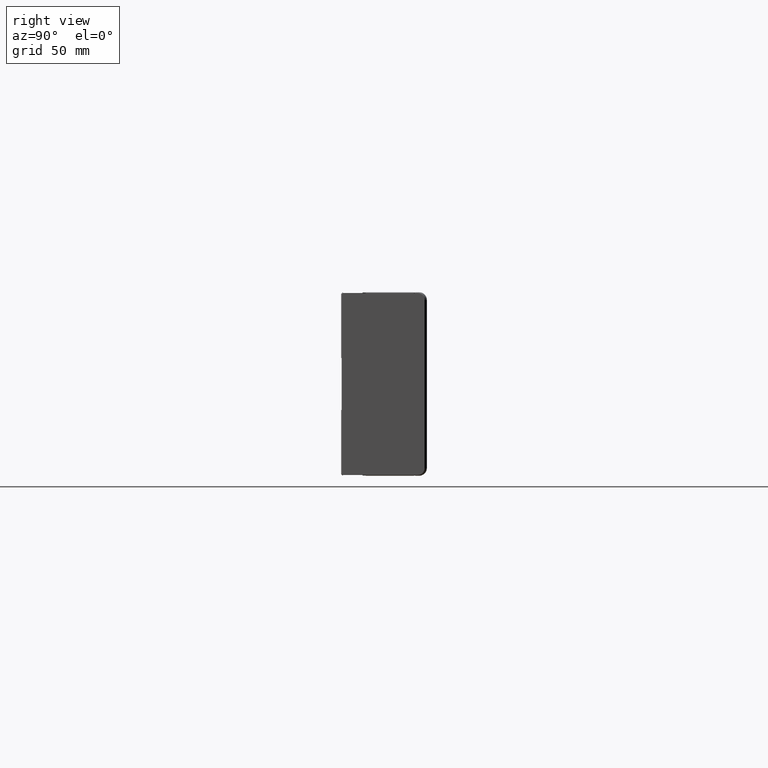
[diagram: clean part render]
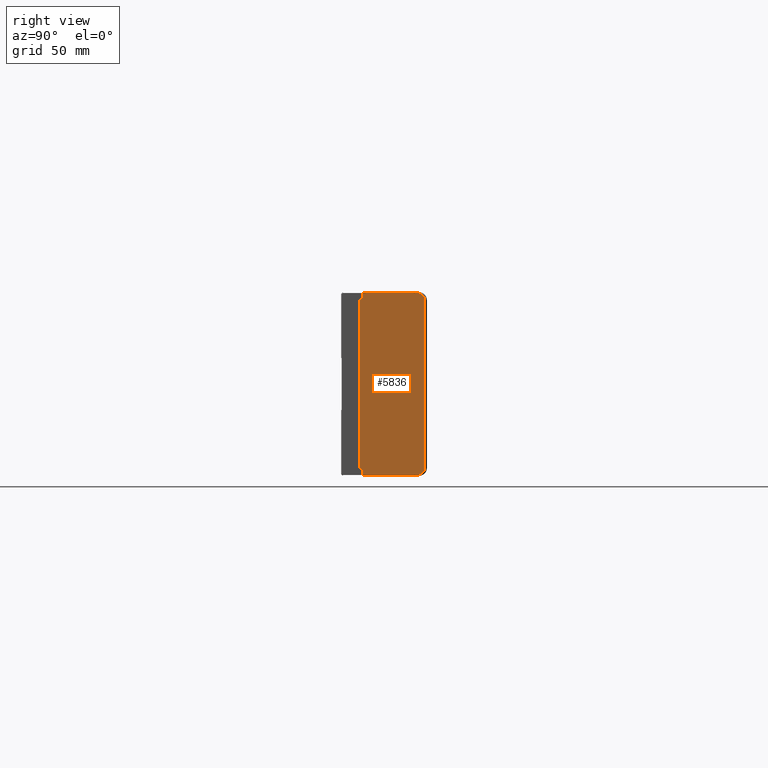
[diagram: same view with one face highlighted and labeled with its STEP entity id]
A machine part, right view. The second image highlights one B-rep face of the part: STEP entity #5836.
In plain terms, the highlighted planar face has unit normal (1, -0, -0).
Its self-contained STEP definition (entity closure, byte-faithful):
#11 = ORIENTED_EDGE ( 'NONE', *, *, #20449, .T. ) ;
#376 = VERTEX_POINT ( 'NONE', #34473 ) ;
#1760 = DIRECTION ( 'NONE',  ( 1.056547006598531300E-014, 6.190706038972726700E-017, 1.000000000000000000 ) ) ;
#2539 = CIRCLE ( 'NONE', #41680, 4.500000000000003600 ) ;
#3076 = DIRECTION ( 'NONE',  ( -3.612632199569478100E-029, 1.000000000000000000, -3.531354012343363500E-015 ) ) ;
#3190 = CARTESIAN_POINT ( 'NONE',  ( -791.7554856032643300, 12.00000000000030900, -294.9134800466685500 ) ) ;
#4076 = CARTESIAN_POINT ( 'NONE',  ( -791.7554856032643300, 54.50000000000031300, -294.9134800466685500 ) ) ;
#4279 = LINE ( 'NONE', #6548, #36877 ) ;
#4504 = LINE ( 'NONE', #29361, #19248 ) ;
#5077 = CARTESIAN_POINT ( 'NONE',  ( -791.7554856032654700, 50.00000000000030600, -404.9134800466685500 ) ) ;
#5407 = DIRECTION ( 'NONE',  ( 1.056547006598531300E-014, -1.983704884120186300E-016, 1.000000000000000000 ) ) ;
#5836 = ADVANCED_FACE ( 'NONE', ( #27735 ), #42341, .T. ) ;
#6163 = ORIENTED_EDGE ( 'NONE', *, *, #35578, .F. ) ;
#6360 = EDGE_CURVE ( 'NONE', #38081, #49874, #4279, .T. ) ;
#6548 = CARTESIAN_POINT ( 'NONE',  ( -791.7554856032643300, 12.00000000000030900, -294.9134800466685500 ) ) ;
#8833 = ORIENTED_EDGE ( 'NONE', *, *, #18478, .F. ) ;
#9707 = CARTESIAN_POINT ( 'NONE',  ( -791.7554856032643300, 14.00000000000029500, -294.9134800466685500 ) ) ;
#10661 = CARTESIAN_POINT ( 'NONE',  ( -791.7554856032643300, 54.50000000000031300, -294.9134800466685500 ) ) ;
#11073 = DIRECTION ( 'NONE',  ( 1.000000000000000000, -1.177128382009478600E-030, -1.056547006598531300E-014 ) ) ;
#12001 = CARTESIAN_POINT ( 'NONE',  ( -791.7554856032643300, 14.00000000000029500, -294.9134800466685500 ) ) ;
#12725 = CARTESIAN_POINT ( 'NONE',  ( -791.7554856032642200, 1.000000000000309800, -290.4134800466685500 ) ) ;
#12980 = EDGE_CURVE ( 'NONE', #22256, #18974, #32246, .T. ) ;
#13588 = LINE ( 'NONE', #9707, #20336 ) ;
#14919 = CARTESIAN_POINT ( 'NONE',  ( -791.7554856032643300, 50.00000000000030600, -294.9134800466685500 ) ) ;
#15781 = CARTESIAN_POINT ( 'NONE',  ( -791.7554856032655800, 14.00000000000030200, -409.4134800466685500 ) ) ;
#16440 = DIRECTION ( 'NONE',  ( 1.000000000000000000, -1.177128382009478600E-030, -1.056547006598531300E-014 ) ) ;
#18217 = ORIENTED_EDGE ( 'NONE', *, *, #12980, .T. ) ;
#18478 = EDGE_CURVE ( 'NONE', #49874, #39934, #39070, .T. ) ;
#18954 = CIRCLE ( 'NONE', #24266, 4.500000000000003600 ) ;
#18974 = VERTEX_POINT ( 'NONE', #22101 ) ;
#19248 = VECTOR ( 'NONE', #1760, 1000.000000000000000 ) ;
#19336 = VECTOR ( 'NONE', #26596, 1000.000000000000000 ) ;
#19737 = DIRECTION ( 'NONE',  ( 5.300159206953673100E-031, 1.000000000000000000, -6.190706038972508600E-017 ) ) ;
#19803 = VECTOR ( 'NONE', #33005, 1000.000000000000000 ) ;
#20336 = VECTOR ( 'NONE', #5407, 1000.000000000000000 ) ;
#20449 = EDGE_CURVE ( 'NONE', #43618, #376, #47547, .T. ) ;
#20463 = CARTESIAN_POINT ( 'NONE',  ( -791.7554856032642200, 50.00000000000030600, -290.4134800466685500 ) ) ;
#20645 = CARTESIAN_POINT ( 'NONE',  ( -791.7554856032654700, 12.00000000000031600, -404.9134800466685500 ) ) ;
#22101 = CARTESIAN_POINT ( 'NONE',  ( -791.7554856032655800, 50.00000000000030600, -409.4134800466685500 ) ) ;
#22256 = VERTEX_POINT ( 'NONE', #15781 ) ;
#22361 = DIRECTION ( 'NONE',  ( 1.056547006598531300E-014, -6.425464695404054500E-017, 1.000000000000000000 ) ) ;
#22904 = DIRECTION ( 'NONE',  ( -1.056547006598531300E-014, -6.190706038972726700E-017, -1.000000000000000000 ) ) ;
#23317 = EDGE_CURVE ( 'NONE', #38010, #46632, #34555, .T. ) ;
#23342 = ORIENTED_EDGE ( 'NONE', *, *, #23317, .T. ) ;
#24239 = EDGE_CURVE ( 'NONE', #46632, #43618, #2539, .T. ) ;
#24266 = AXIS2_PLACEMENT_3D ( 'NONE', #5077, #16440, #28436 ) ;
#24729 = VERTEX_POINT ( 'NONE', #43535 ) ;
#26596 = DIRECTION ( 'NONE',  ( -3.718635383708551600E-029, -1.000000000000000000, -3.407539891563913000E-015 ) ) ;
#26782 = EDGE_CURVE ( 'NONE', #18974, #38010, #18954, .T. ) ;
#27320 = VECTOR ( 'NONE', #19737, 1000.000000000000000 ) ;
#27735 = FACE_OUTER_BOUND ( 'NONE', #45351, .T. ) ;
#28436 = DIRECTION ( 'NONE',  ( 0.0000000000000000000, 0.0000000000000000000, -1.000000000000000000 ) ) ;
#29286 = ORIENTED_EDGE ( 'NONE', *, *, #39036, .F. ) ;
#29361 = CARTESIAN_POINT ( 'NONE',  ( -791.7554856032654700, 14.00000000000030200, -404.9134800466685500 ) ) ;
#29777 = LINE ( 'NONE', #46028, #19336 ) ;
#31643 = ORIENTED_EDGE ( 'NONE', *, *, #6360, .F. ) ;
#31745 = CARTESIAN_POINT ( 'NONE',  ( -791.7554856032655800, 50.00000000000030600, -409.4134800466685500 ) ) ;
#32246 = LINE ( 'NONE', #31745, #27320 ) ;
#33005 = DIRECTION ( 'NONE',  ( 1.056547006598531300E-014, 6.190706038972726700E-017, 1.000000000000000000 ) ) ;
#33673 = ORIENTED_EDGE ( 'NONE', *, *, #24239, .T. ) ;
#34473 = CARTESIAN_POINT ( 'NONE',  ( -791.7554856032642200, 14.00000000000029300, -290.4134800466685500 ) ) ;
#34555 = LINE ( 'NONE', #10661, #19803 ) ;
#34592 = CARTESIAN_POINT ( 'NONE',  ( -791.7554856032642200, 55.00000000000031300, -289.9134800466685500 ) ) ;
#35491 = ORIENTED_EDGE ( 'NONE', *, *, #26782, .T. ) ;
#35578 = EDGE_CURVE ( 'NONE', #24729, #38081, #29777, .T. ) ;
#36877 = VECTOR ( 'NONE', #22361, 1000.000000000000000 ) ;
#38010 = VERTEX_POINT ( 'NONE', #40343 ) ;
#38081 = VERTEX_POINT ( 'NONE', #20645 ) ;
#38801 = DIRECTION ( 'NONE',  ( 0.0000000000000000000, 0.0000000000000000000, -1.000000000000000000 ) ) ;
#39036 = EDGE_CURVE ( 'NONE', #39934, #376, #13588, .T. ) ;
#39070 = LINE ( 'NONE', #46842, #50730 ) ;
#39227 = ORIENTED_EDGE ( 'NONE', *, *, #40619, .F. ) ;
#39934 = VERTEX_POINT ( 'NONE', #12001 ) ;
#40208 = DIRECTION ( 'NONE',  ( -5.300159206953673100E-031, -1.000000000000000000, 6.190706038972508600E-017 ) ) ;
#40343 = CARTESIAN_POINT ( 'NONE',  ( -791.7554856032654700, 54.50000000000029800, -404.9134800466685500 ) ) ;
#40619 = EDGE_CURVE ( 'NONE', #22256, #24729, #4504, .T. ) ;
#41680 = AXIS2_PLACEMENT_3D ( 'NONE', #14919, #50128, #38801 ) ;
#42034 = VECTOR ( 'NONE', #40208, 1000.000000000000000 ) ;
#42341 = PLANE ( 'NONE',  #43064 ) ;
#43064 = AXIS2_PLACEMENT_3D ( 'NONE', #34592, #11073, #22904 ) ;
#43535 = CARTESIAN_POINT ( 'NONE',  ( -791.7554856032654700, 14.00000000000030200, -404.9134800466685500 ) ) ;
#43618 = VERTEX_POINT ( 'NONE', #20463 ) ;
#45351 = EDGE_LOOP ( 'NONE', ( #29286, #8833, #31643, #6163, #39227, #18217, #35491, #23342, #33673, #11 ) ) ;
#46028 = CARTESIAN_POINT ( 'NONE',  ( -791.7554856032654700, 14.00000000000030200, -404.9134800466685500 ) ) ;
#46632 = VERTEX_POINT ( 'NONE', #4076 ) ;
#46842 = CARTESIAN_POINT ( 'NONE',  ( -791.7554856032643300, 14.00000000000029500, -294.9134800466685500 ) ) ;
#47547 = LINE ( 'NONE', #12725, #42034 ) ;
#49874 = VERTEX_POINT ( 'NONE', #3190 ) ;
#50128 = DIRECTION ( 'NONE',  ( 1.000000000000000000, -1.177128382009478600E-030, -1.056547006598531300E-014 ) ) ;
#50730 = VECTOR ( 'NONE', #3076, 1000.000000000000000 ) ;